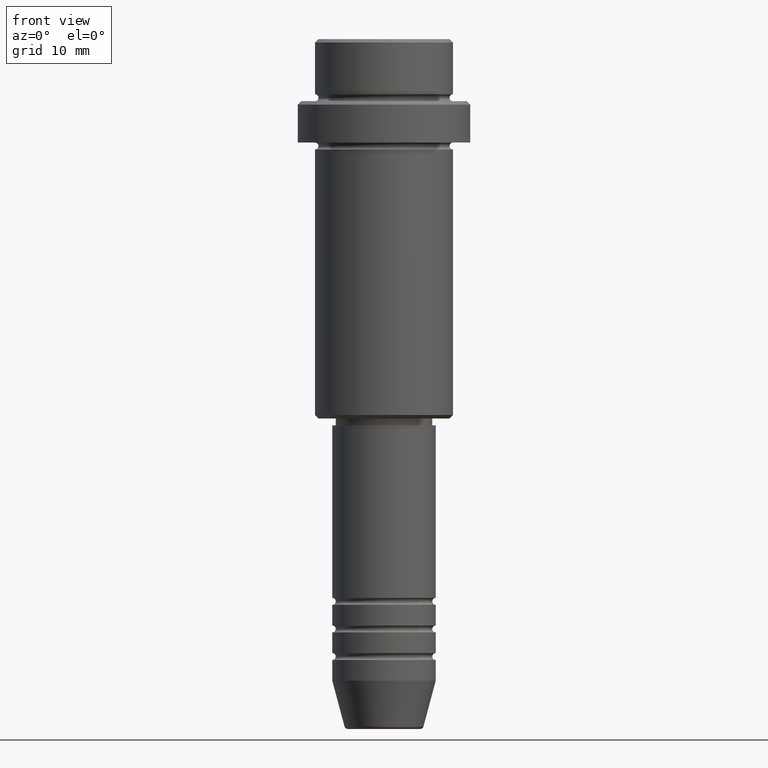
[diagram: clean part render]
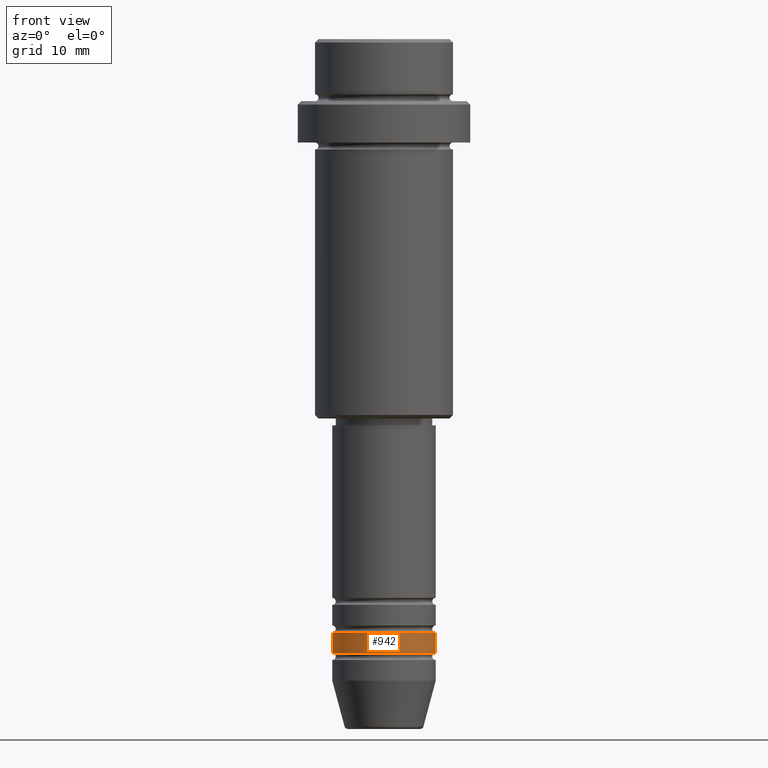
[diagram: same view with one face highlighted and labeled with its STEP entity id]
A machine part, front view. The second image highlights one B-rep face of the part: STEP entity #942.
In plain terms, the highlighted cylindrical surface (partial cylindrical patch) has radius 7.5 mm, axis along (-0, -0, 1).
Its self-contained STEP definition (entity closure, byte-faithful):
#64 = CARTESIAN_POINT ( 'NONE',  ( 7.500000000000000000, 0.000000000000000000, -88.99999999999988631 ) ) ;
#102 = DIRECTION ( 'NONE',  ( -0.000000000000000000, -0.000000000000000000, 1.000000000000000000 ) ) ;
#177 = CARTESIAN_POINT ( 'NONE',  ( 0.000000000000000000, 0.000000000000000000, -85.99999999999988631 ) ) ;
#224 = DIRECTION ( 'NONE',  ( -0.000000000000000000, -0.000000000000000000, 1.000000000000000000 ) ) ;
#240 = CARTESIAN_POINT ( 'NONE',  ( -7.500000000000000000, 9.184850993605147944E-16, 0.000000000000000000 ) ) ;
#263 = EDGE_CURVE ( 'NONE', #1386, #905, #1414, .T. ) ;
#278 = CYLINDRICAL_SURFACE ( 'NONE', #579, 7.500000000000000000 ) ;
#341 = EDGE_CURVE ( 'NONE', #1047, #905, #657, .T. ) ;
#397 = CARTESIAN_POINT ( 'NONE',  ( 0.000000000000000000, 0.000000000000000000, 0.000000000000000000 ) ) ;
#468 = CARTESIAN_POINT ( 'NONE',  ( -7.500000000000000000, 9.184850993605147944E-16, -88.99999999999988631 ) ) ;
#556 = DIRECTION ( 'NONE',  ( -0.000000000000000000, -0.000000000000000000, 1.000000000000000000 ) ) ;
#579 = AXIS2_PLACEMENT_3D ( 'NONE', #397, #1168, #1264 ) ;
#657 = LINE ( 'NONE', #1098, #991 ) ;
#671 = VECTOR ( 'NONE', #556, 1000.000000000000000 ) ;
#678 = ORIENTED_EDGE ( 'NONE', *, *, #263, .F. ) ;
#740 = AXIS2_PLACEMENT_3D ( 'NONE', #1113, #224, #1123 ) ;
#759 = DIRECTION ( 'NONE',  ( 1.000000000000000000, 0.000000000000000000, 0.000000000000000000 ) ) ;
#793 = CARTESIAN_POINT ( 'NONE',  ( 7.500000000000000000, 0.000000000000000000, -85.99999999999988631 ) ) ;
#801 = AXIS2_PLACEMENT_3D ( 'NONE', #177, #1290, #759 ) ;
#808 = EDGE_LOOP ( 'NONE', ( #1028, #1237, #917, #678 ) ) ;
#812 = CARTESIAN_POINT ( 'NONE',  ( -7.500000000000000000, 9.184850993605147944E-16, -85.99999999999988631 ) ) ;
#838 = EDGE_CURVE ( 'NONE', #884, #1386, #1124, .T. ) ;
#884 = VERTEX_POINT ( 'NONE', #468 ) ;
#905 = VERTEX_POINT ( 'NONE', #793 ) ;
#917 = ORIENTED_EDGE ( 'NONE', *, *, #341, .T. ) ;
#942 = ADVANCED_FACE ( 'NONE', ( #1250 ), #278, .T. ) ;
#991 = VECTOR ( 'NONE', #102, 1000.000000000000000 ) ;
#1028 = ORIENTED_EDGE ( 'NONE', *, *, #838, .F. ) ;
#1047 = VERTEX_POINT ( 'NONE', #64 ) ;
#1098 = CARTESIAN_POINT ( 'NONE',  ( 7.500000000000000000, 0.000000000000000000, 0.000000000000000000 ) ) ;
#1111 = CIRCLE ( 'NONE', #740, 7.500000000000000000 ) ;
#1113 = CARTESIAN_POINT ( 'NONE',  ( 0.000000000000000000, 0.000000000000000000, -88.99999999999988631 ) ) ;
#1123 = DIRECTION ( 'NONE',  ( 1.000000000000000000, 0.000000000000000000, 0.000000000000000000 ) ) ;
#1124 = LINE ( 'NONE', #240, #671 ) ;
#1168 = DIRECTION ( 'NONE',  ( -0.000000000000000000, -0.000000000000000000, 1.000000000000000000 ) ) ;
#1237 = ORIENTED_EDGE ( 'NONE', *, *, #1266, .T. ) ;
#1250 = FACE_OUTER_BOUND ( 'NONE', #808, .T. ) ;
#1264 = DIRECTION ( 'NONE',  ( 1.000000000000000000, 0.000000000000000000, 0.000000000000000000 ) ) ;
#1266 = EDGE_CURVE ( 'NONE', #884, #1047, #1111, .T. ) ;
#1290 = DIRECTION ( 'NONE',  ( -0.000000000000000000, -0.000000000000000000, 1.000000000000000000 ) ) ;
#1386 = VERTEX_POINT ( 'NONE', #812 ) ;
#1414 = CIRCLE ( 'NONE', #801, 7.500000000000000000 ) ;